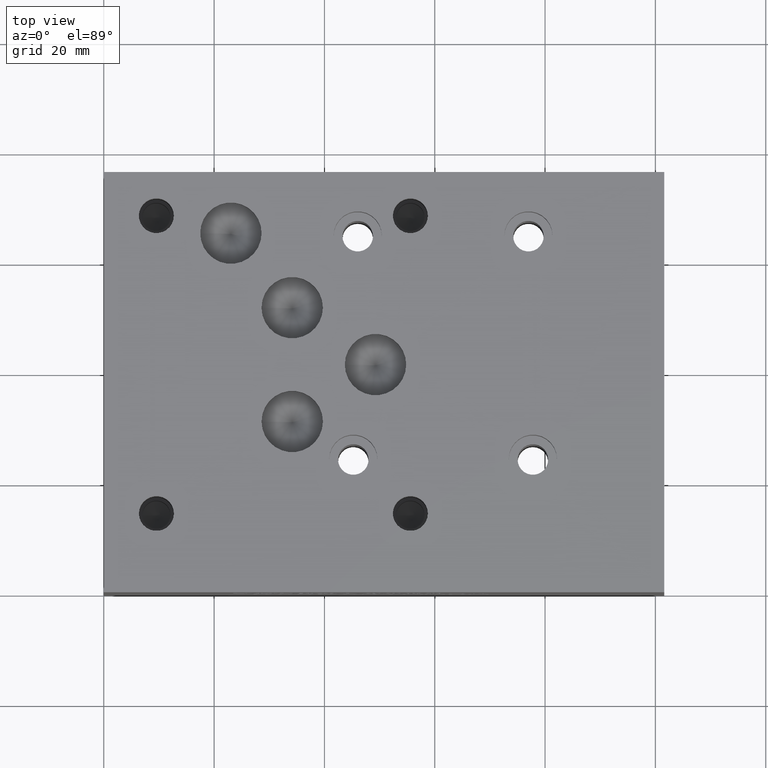
[diagram: clean part render]
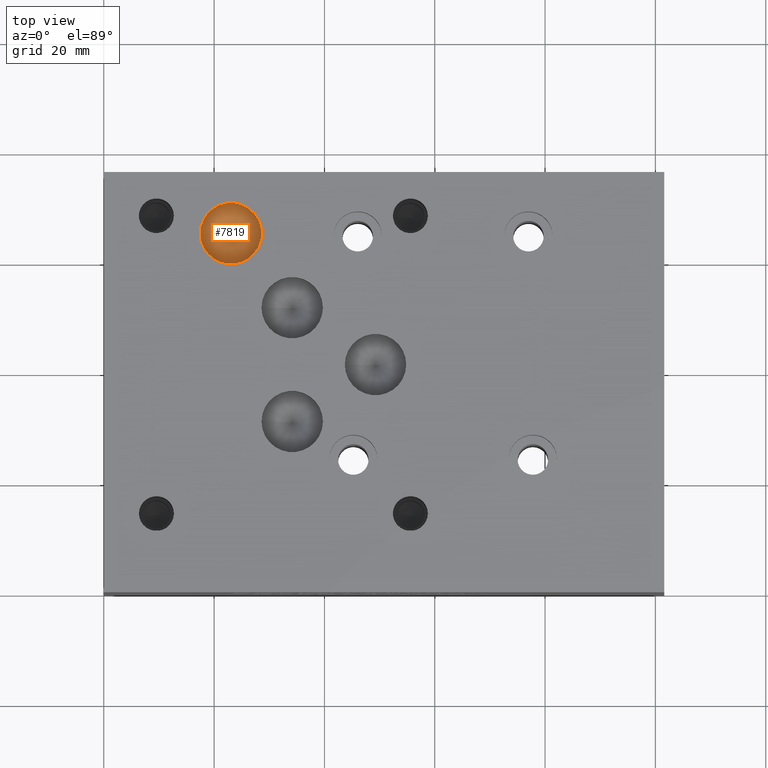
[diagram: same view with one face highlighted and labeled with its STEP entity id]
A machine part, top view. The second image highlights one B-rep face of the part: STEP entity #7819.
In plain terms, the highlighted conical surface has half-angle 60 deg.
Its self-contained STEP definition (entity closure, byte-faithful):
#87=CIRCLE('',#8192,5.5626);
#116=CONICAL_SURFACE('',#8191,2.7813,1.0471975511966);
#855=FACE_OUTER_BOUND('',#1311,.T.);
#1311=EDGE_LOOP('',(#6741,#6742,#6743));
#2134=LINE('',#13141,#2937);
#2937=VECTOR('',#9684,2.7813);
#3639=VERTEX_POINT('',#13138);
#3640=VERTEX_POINT('',#13140);
#4683=EDGE_CURVE('',#3639,#3639,#87,.T.);
#4684=EDGE_CURVE('',#3639,#3640,#2134,.T.);
#6741=ORIENTED_EDGE('',*,*,#4683,.T.);
#6742=ORIENTED_EDGE('',*,*,#4684,.T.);
#6743=ORIENTED_EDGE('',*,*,#4684,.F.);
#7819=ADVANCED_FACE('',(#855),#116,.F.);
#8191=AXIS2_PLACEMENT_3D('',#13137,#9680,#9681);
#8192=AXIS2_PLACEMENT_3D('',#13139,#9682,#9683);
#9680=DIRECTION('center_axis',(0.,0.,1.));
#9681=DIRECTION('ref_axis',(1.,0.,0.));
#9682=DIRECTION('center_axis',(0.,0.,1.));
#9683=DIRECTION('ref_axis',(1.,0.,0.));
#9684=DIRECTION('',(0.866025403784439,1.06057523872491E-16,-0.5));
#13137=CARTESIAN_POINT('Origin',(23.0378,65.1002,33.2826456963029));
#13138=CARTESIAN_POINT('',(17.4752,65.1002,34.88843));
#13139=CARTESIAN_POINT('Origin',(23.0378,65.1002,34.88843));
#13140=CARTESIAN_POINT('',(23.0378,65.1002,31.6768613926058));
#13141=CARTESIAN_POINT('',(20.2565,65.1002,33.2826456963029));